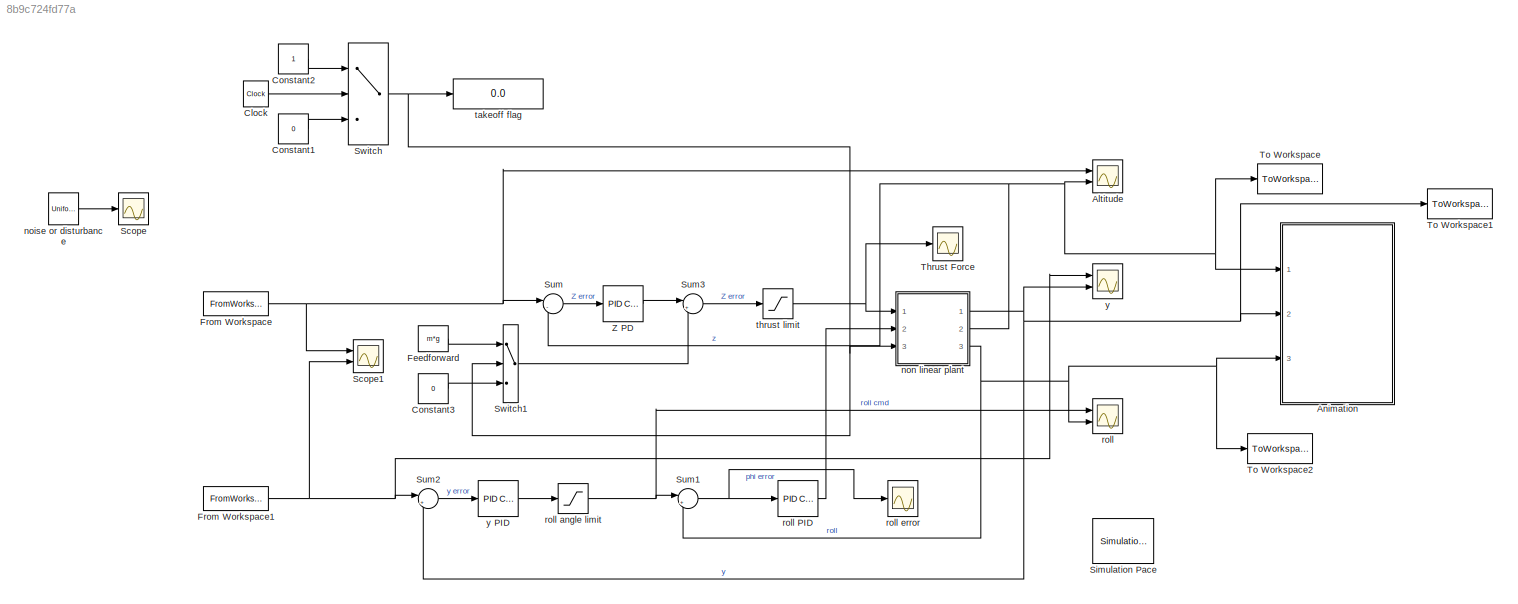
MODEL slx_8b9c724fd77a
KIND model
CONFIG AbsTol = auto
CONFIG EnableMultiTasking = off
CONFIG FixedStep = auto
CONFIG MaxStep = auto
CONFIG MinStep = auto
CONFIG RelTol = 1e-3
CONFIG SampleTimeConstraint = Unconstrained
CONFIG Solver = VariableStepAuto
CONFIG SolverName = VariableStepAuto
CONFIG StartTime = 0.0
CONFIG StopTime = Tfinal
WORKSPACE source: external: MAT-File  (data not in archive)
BLOCK [Scope] Altitude
  Floating = off
  NumInputPorts = 2
  Ports = [2]
  ScopeSpecificationString = Simulink.scopes.TimeScopeBlockCfg('CurrentConfiguration', extmgr.ConfigurationSet(extmgr.Configuration('Core','General UI',true),extmgr.Configuration('Core','Source UI',true),extmgr.Configuration('Sources','WiredSimulink',true,'DataLoggingVariableName','ScopeData1'),extmgr.Configuration('Visuals','Time Domain',true,'SerializedDisplays',{struct('MinYLimReal','-11.51801','MaxYLimReal','1.27978','YLa...<+1452ch>
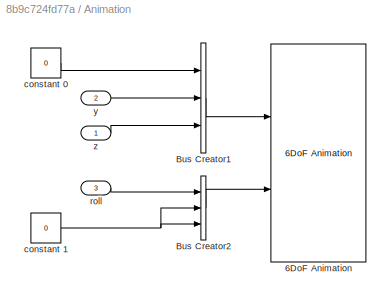
BLOCK [SubSystem] Animation
  Ports = [3]
  RequestExecContextInheritance = off
BLOCK [Reference] Animation/6DoF Animation  REF=aerolibanim/6DoF Animation
  Ports = [2]
  SourceBlock = aerolibanim/6DoF Animation
  SourceProductBaseCode = AE
  SourceType = 6DoF_Animation
BLOCK [BusCreator] Animation/Bus Creator1
  DisplayOption = bar
  InheritFromInputs = on
  Inputs = 3
  Ports = [3, 1]
BLOCK [BusCreator] Animation/Bus Creator2
  DisplayOption = bar
  InheritFromInputs = on
  Inputs = 3
  Ports = [3, 1]
BLOCK [Constant] Animation/constant 0
  Value = 0
BLOCK [Constant] Animation/constant 1
  Value = 0
BLOCK [Inport] Animation/roll
  Port = 3
BLOCK [Inport] Animation/y
  Port = 2
BLOCK [Inport] Animation/z
BLOCK [Clock] Clock
BLOCK [Constant] Constant1
  Value = 0
BLOCK [Constant] Constant2
BLOCK [Constant] Constant3
  Value = 0
BLOCK [Constant] Feedforward
  Value = m*g
BLOCK [FromWorkspace] From Workspace
  SampleTime = ts
  VariableName = Zcmd
BLOCK [FromWorkspace] From Workspace1
  SampleTime = ts
  VariableName = Ycmd
BLOCK [Scope] Scope
  Floating = off
  NumInputPorts = 1
  Ports = [1]
  ScopeSpecificationString = Simulink.scopes.TimeScopeBlockCfg('CurrentConfiguration', extmgr.ConfigurationSet(extmgr.Configuration('Core','General UI',true),extmgr.Configuration('Core','Source UI',true),extmgr.Configuration('Sources','WiredSimulink',true,'DataLoggingVariableName','ScopeData1'),extmgr.Configuration('Visuals','Time Domain',true,'SerializedDisplays',{struct('MinYLimReal','-1.24853','MaxYLimReal','1.24863','YLab...<+1407ch>
BLOCK [Scope] Scope1
  Floating = off
  NumInputPorts = 2
  Ports = [2]
  ScopeSpecificationString = Simulink.scopes.TimeScopeBlockCfg('CurrentConfiguration', extmgr.ConfigurationSet(extmgr.Configuration('Core','General UI',true),extmgr.Configuration('Core','Source UI',true),extmgr.Configuration('Sources','WiredSimulink',true,'DataLoggingVariableName','ScopeData1'),extmgr.Configuration('Visuals','Time Domain',true,'SerializedDisplays',{struct('MinYLimReal','-1.25','MaxYLimReal','1.25','YLabelReal...<+1426ch>
BLOCK [Reference] Simulation Pace  REF=aerolibanimutils/Simulation Pace
  AttributesFormatString = %<SleepMode>\n%<SimulationPace> sec/sec
  Commented = on
  Ports = []
  SourceBlock = aerolibanimutils/Simulation Pace
  SourceProductBaseCode = AE
  SourceType = Simulation Pace
BLOCK [Sum] Sum
  Inputs = |-+
  Ports = [2, 1]
BLOCK [Sum] Sum1
  Inputs = |+-
  Ports = [2, 1]
BLOCK [Sum] Sum2
  Inputs = |+-
  Ports = [2, 1]
BLOCK [Sum] Sum3
  Inputs = |++
  NameLocation = top
  Ports = [2, 1]
BLOCK [Switch] Switch
  Criteria = u2 > Threshold
  InputSameDT = off
  SaturateOnIntegerOverflow = off
  Threshold = TOFtime
BLOCK [Switch] Switch1
  Criteria = u2 > Threshold
  InputSameDT = off
  SaturateOnIntegerOverflow = off
BLOCK [Scope] Thrust Force
  Floating = off
  NumInputPorts = 1
  Ports = [1]
  ScopeSpecificationString = Simulink.scopes.TimeScopeBlockCfg('CurrentConfiguration', extmgr.ConfigurationSet(extmgr.Configuration('Core','General UI',true),extmgr.Configuration('Core','Source UI',true),extmgr.Configuration('Sources','WiredSimulink',true),extmgr.Configuration('Visuals','Time Domain',true,'SerializedDisplays',{struct('MinYLimReal','-3.83413','MaxYLimReal','33.75935','YLabelReal','','MinYLimMag','0.00000','Max...<+1452ch>
BLOCK [ToWorkspace] To Workspace
  FixptAsFi = on
  MaxDataPoints = inf
  Ports = [1]
  SampleTime = -1
  VariableName = zout
BLOCK [ToWorkspace] To Workspace1
  FixptAsFi = on
  MaxDataPoints = inf
  Ports = [1]
  SampleTime = -1
  VariableName = yout
BLOCK [ToWorkspace] To Workspace2
  FixptAsFi = on
  MaxDataPoints = inf
  Ports = [1]
  SampleTime = -1
  VariableName = rollout
BLOCK [Reference] Z PD  REF=simulink/Continuous/PID Controller
  Ports = [1, 1]
  SourceBlock = simulink/Continuous/PID Controller
  SourceProductBaseCode = SL
  SourceType = PID 1dof
BLOCK [UniformRandomNumber] noise or disturbance
  SampleTime = 0.1
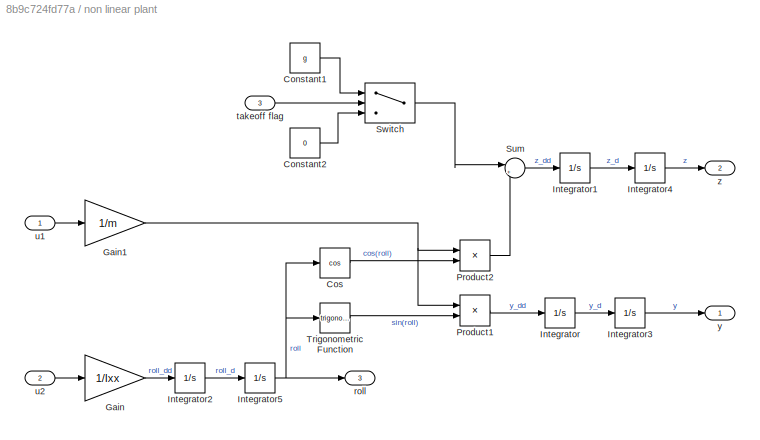
BLOCK [SubSystem] non linear plant
  Ports = [3, 3]
  RequestExecContextInheritance = off
BLOCK [Constant] non linear plant/Constant1
  Value = g
BLOCK [Constant] non linear plant/Constant2
  Value = 0
BLOCK [Trigonometry] non linear plant/Cos
  Operator = cos
  Ports = [1, 1]
BLOCK [Gain] non linear plant/Gain
  Gain = 1/Ixx
BLOCK [Gain] non linear plant/Gain1
  Gain = 1/m
BLOCK [Integrator] non linear plant/Integrator
  Ports = [1, 1]
BLOCK [Integrator] non linear plant/Integrator1
  Ports = [1, 1]
BLOCK [Integrator] non linear plant/Integrator2
  Ports = [1, 1]
BLOCK [Integrator] non linear plant/Integrator3
  Ports = [1, 1]
BLOCK [Integrator] non linear plant/Integrator4
  Ports = [1, 1]
BLOCK [Integrator] non linear plant/Integrator5
  Ports = [1, 1]
BLOCK [Product] non linear plant/Product1
  Ports = [2, 1]
BLOCK [Product] non linear plant/Product2
  Ports = [2, 1]
BLOCK [Sum] non linear plant/Sum
  Inputs = |+-
  Ports = [2, 1]
BLOCK [Switch] non linear plant/Switch
  Criteria = u2 > Threshold
  InputSameDT = off
  SaturateOnIntegerOverflow = off
BLOCK [Trigonometry] non linear plant/Trigonometric Function
  Ports = [1, 1]
BLOCK [Outport] non linear plant/roll
  Port = 3
BLOCK [Inport] non linear plant/takeoff flag
  Port = 3
BLOCK [Inport] non linear plant/u1
BLOCK [Inport] non linear plant/u2
  Port = 2
BLOCK [Outport] non linear plant/y
BLOCK [Outport] non linear plant/z
  Port = 2
BLOCK [Scope] roll
  Floating = off
  NumInputPorts = 2
  Ports = [2]
  ScopeSpecificationString = Simulink.scopes.TimeScopeBlockCfg('CurrentConfiguration', extmgr.ConfigurationSet(extmgr.Configuration('Core','General UI',true),extmgr.Configuration('Core','Source UI',true),extmgr.Configuration('Sources','WiredSimulink',true,'DataLoggingVariableName','ScopeData3'),extmgr.Configuration('Visuals','Time Domain',true,'SerializedDisplays',{struct('MinYLimReal','-0.21842','MaxYLimReal','0.60205','YLab...<+1490ch>
BLOCK [Reference] roll PID  REF=simulink/Continuous/PID Controller
  Ports = [1, 1]
  SourceBlock = simulink/Continuous/PID Controller
  SourceProductBaseCode = SL
  SourceType = PID 1dof
BLOCK [Saturate] roll angle limit
  LowerLimit = -0.52
  UpperLimit = 0.52
BLOCK [Scope] roll error
  Floating = off
  NumInputPorts = 1
  Ports = [1]
  ScopeSpecificationString = Simulink.scopes.TimeScopeBlockCfg('CurrentConfiguration', extmgr.ConfigurationSet(extmgr.Configuration('Core','General UI',true),extmgr.Configuration('Core','Source UI',true),extmgr.Configuration('Sources','WiredSimulink',true,'DataLoggingVariableName','ScopeData2'),extmgr.Configuration('Visuals','Time Domain',true,'SerializedDisplays',{struct('MinYLimReal','-0.41404','MaxYLimReal','0.62378','YLab...<+1484ch>
BLOCK [Display] takeoff flag
  Decimation = 1
  Ports = [1]
BLOCK [Saturate] thrust limit
  LowerLimit = -30
  UpperLimit = 30
BLOCK [Scope] y
  Floating = off
  NumInputPorts = 2
  Ports = [2]
  ScopeSpecificationString = Simulink.scopes.TimeScopeBlockCfg('CurrentConfiguration', extmgr.ConfigurationSet(extmgr.Configuration('Core','General UI',true),extmgr.Configuration('Core','Source UI',true),extmgr.Configuration('Sources','WiredSimulink',true,'DataLoggingVariableName','ScopeData2'),extmgr.Configuration('Visuals','Time Domain',true,'SerializedDisplays',{struct('MinYLimReal','-0.77028','MaxYLimReal','6.93256','YLab...<+1448ch>
BLOCK [Reference] y PID  REF=simulink/Continuous/PID Controller
  Ports = [1, 1]
  SourceBlock = simulink/Continuous/PID Controller
  SourceProductBaseCode = SL
  SourceType = PID 1dof
LINE Animation/Bus Creator1:1 -> Animation/6DoF Animation:1
LINE Animation/Bus Creator2:1 -> Animation/6DoF Animation:2
LINE Animation/constant 0:1 -> Animation/Bus Creator1:1
NET Animation/constant 1:1 -> Animation/Bus Creator2:2, Animation/Bus Creator2:3
LINE Animation/roll:1 -> Animation/Bus Creator2:1
LINE Animation/y:1 -> Animation/Bus Creator1:2
LINE Animation/z:1 -> Animation/Bus Creator1:3
LINE Clock:1 -> Switch:2
LINE Constant1:1 -> Switch:3
LINE Constant2:1 -> Switch:1
LINE Constant3:1 -> Switch1:3
LINE Feedforward:1 -> Switch1:1
NET From Workspace1:1 -> Scope1:2, Sum2:1, y:1
NET From Workspace:1 -> Altitude:1, Scope1:1, Sum:1
NET Sum1:1 -> roll PID:1, roll error:1
LINE Sum2:1 -> y PID:1
LINE Sum3:1 -> thrust limit:1
LINE Sum:1 -> Z PD:1
LINE Switch1:1 -> Sum3:2
NET Switch:1 -> Switch1:2, non linear plant:3, takeoff flag:1
LINE Z PD:1 -> Sum3:1
LINE noise or disturbance:1 -> Scope:1
LINE non linear plant/Constant1:1 -> non linear plant/Switch:1
LINE non linear plant/Constant2:1 -> non linear plant/Switch:3
LINE non linear plant/Cos:1 -> non linear plant/Product2:2
NET non linear plant/Gain1:1 -> non linear plant/Product1:1, non linear plant/Product2:1
LINE non linear plant/Gain:1 -> non linear plant/Integrator2:1
LINE non linear plant/Integrator1:1 -> non linear plant/Integrator4:1
LINE non linear plant/Integrator2:1 -> non linear plant/Integrator5:1
LINE non linear plant/Integrator3:1 -> non linear plant/y:1
LINE non linear plant/Integrator4:1 -> non linear plant/z:1
NET non linear plant/Integrator5:1 -> non linear plant/Cos:1, non linear plant/Trigonometric Function:1, non linear plant/roll:1
LINE non linear plant/Integrator:1 -> non linear plant/Integrator3:1
LINE non linear plant/Product1:1 -> non linear plant/Integrator:1
LINE non linear plant/Product2:1 -> non linear plant/Sum:2
LINE non linear plant/Sum:1 -> non linear plant/Integrator1:1
LINE non linear plant/Switch:1 -> non linear plant/Sum:1
LINE non linear plant/Trigonometric Function:1 -> non linear plant/Product1:2
LINE non linear plant/takeoff flag:1 -> non linear plant/Switch:2
LINE non linear plant/u1:1 -> non linear plant/Gain1:1
LINE non linear plant/u2:1 -> non linear plant/Gain:1
NET non linear plant:1 -> Animation:2, Sum2:2, To Workspace1:1, y:2
NET non linear plant:2 -> Altitude:2, Animation:1, Sum:2, To Workspace:1
NET non linear plant:3 -> Animation:3, Sum1:2, To Workspace2:1, roll:2
LINE roll PID:1 -> non linear plant:2
NET roll angle limit:1 -> Sum1:1, roll:1
NET thrust limit:1 -> Thrust Force:1, non linear plant:1
LINE y PID:1 -> roll angle limit:1
note: NET lines group one-source signal fan-out (src -> all destinations, sorted); 1:1 wires keep LINE
